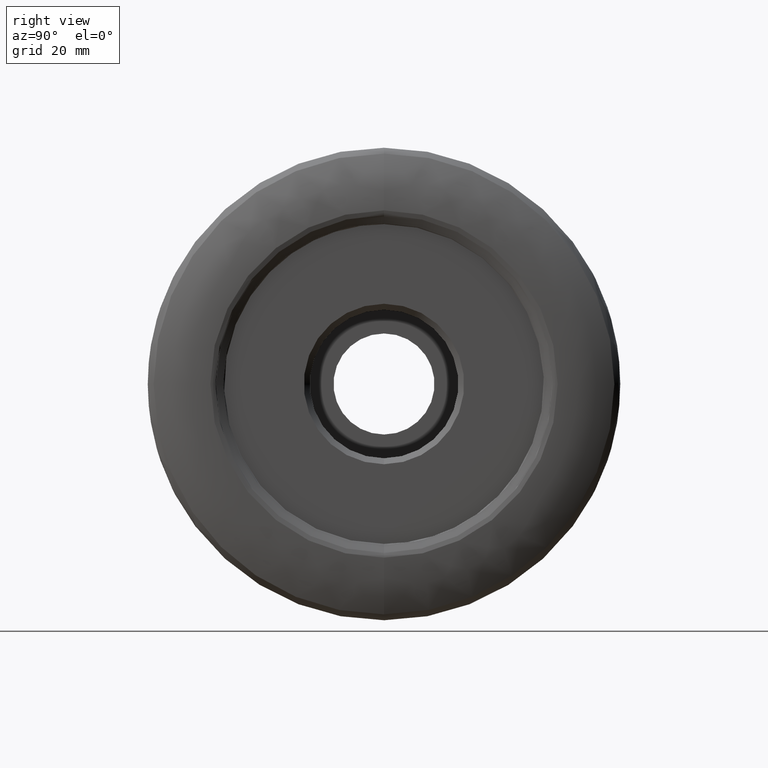
[diagram: clean part render]
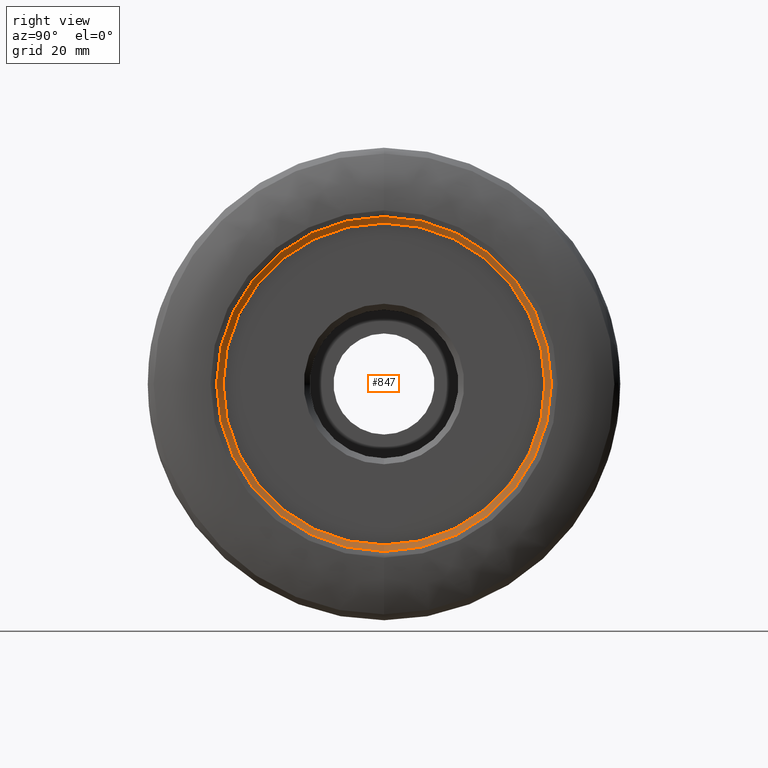
[diagram: same view with one face highlighted and labeled with its STEP entity id]
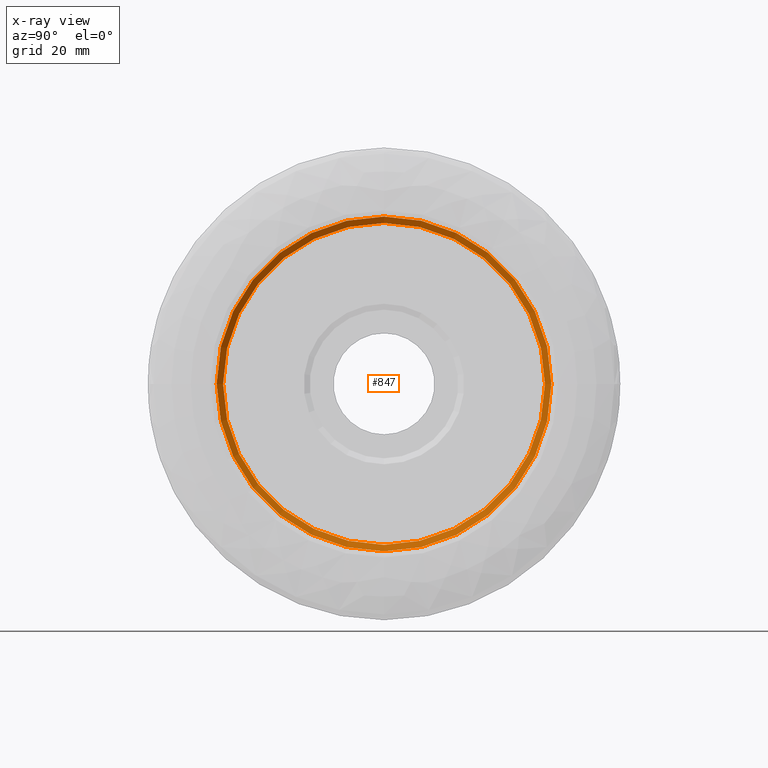
[diagram: x-ray of the same camera — body ghosted, the highlighted face saturated]
A machine part, right view. The second image highlights one B-rep face of the part: STEP entity #847.
The next image is the same camera in x-ray: the body ghosted, the highlighted face saturated — about 0% of this face is hidden behind the body in this view.
In plain terms, the highlighted conical surface has half-angle 61.835 deg.
Its self-contained STEP definition (entity closure, byte-faithful):
#4 = EDGE_CURVE ( 'NONE', #663, #484, #1372, .T. ) ;
#7 = AXIS2_PLACEMENT_3D ( 'NONE', #2329, #2338, #2348 ) ;
#173 = ORIENTED_EDGE ( 'NONE', *, *, #1138, .T. ) ;
#463 = EDGE_LOOP ( 'NONE', ( #173, #2326 ) ) ;
#484 = VERTEX_POINT ( 'NONE', #1612 ) ;
#505 = CIRCLE ( 'NONE', #576, 27.07297772700000800 ) ;
#576 = AXIS2_PLACEMENT_3D ( 'NONE', #1472, #1464, #1456 ) ;
#611 = EDGE_LOOP ( 'NONE', ( #756, #2225 ) ) ;
#663 = VERTEX_POINT ( 'NONE', #1195 ) ;
#701 = CARTESIAN_POINT ( 'NONE',  ( 0.1070139819999704800, 0.0000000000000000000, 0.0000000000000000000 ) ) ;
#712 = DIRECTION ( 'NONE',  ( -1.000000000000000000, -0.0000000000000000000, -0.0000000000000000000 ) ) ;
#715 = AXIS2_PLACEMENT_3D ( 'NONE', #701, #712, #746 ) ;
#746 = DIRECTION ( 'NONE',  ( 1.090790860571741500E-015, 0.0000000000000000000, -1.000000000000000000 ) ) ;
#756 = ORIENTED_EDGE ( 'NONE', *, *, #2580, .F. ) ;
#770 = DIRECTION ( 'NONE',  ( 0.0000000000000000000, 0.0000000000000000000, -1.000000000000000000 ) ) ;
#847 = ADVANCED_FACE ( 'NONE', ( #1924, #2791 ), #2800, .F. ) ;
#950 = DIRECTION ( 'NONE',  ( 1.000000000000000000, 0.0000000000000000000, 0.0000000000000000000 ) ) ;
#1138 = EDGE_CURVE ( 'NONE', #484, #663, #505, .T. ) ;
#1195 = CARTESIAN_POINT ( 'NONE',  ( 0.1070139820929238300, 0.0000000000000000000, 27.07297772735311600 ) ) ;
#1372 = CIRCLE ( 'NONE', #715, 27.07297772700000800 ) ;
#1381 = CARTESIAN_POINT ( 'NONE',  ( 0.1070139820000000100, 0.0000000000000000000, 0.0000000000000000000 ) ) ;
#1456 = DIRECTION ( 'NONE',  ( 1.090790860571741500E-015, 0.0000000000000000000, -1.000000000000000000 ) ) ;
#1464 = DIRECTION ( 'NONE',  ( -1.000000000000000000, -0.0000000000000000000, -0.0000000000000000000 ) ) ;
#1472 = CARTESIAN_POINT ( 'NONE',  ( 0.1070139819999704800, 0.0000000000000000000, 0.0000000000000000000 ) ) ;
#1481 = CIRCLE ( 'NONE', #1631, 28.16183304715605800 ) ;
#1515 = CIRCLE ( 'NONE', #7, 28.16183304715605800 ) ;
#1612 = CARTESIAN_POINT ( 'NONE',  ( 0.1070139821451343000, -6.077452256193997900E-010, -27.07297772740574300 ) ) ;
#1631 = AXIS2_PLACEMENT_3D ( 'NONE', #2299, #2287, #2281 ) ;
#1693 = CARTESIAN_POINT ( 'NONE',  ( 0.6900007020879683800, -7.220110639020060800E-009, 28.16183304705850800 ) ) ;
#1820 = VERTEX_POINT ( 'NONE', #1693 ) ;
#1905 = AXIS2_PLACEMENT_3D ( 'NONE', #1381, #950, #770 ) ;
#1924 = FACE_BOUND ( 'NONE', #463, .T. ) ;
#1945 = VERTEX_POINT ( 'NONE', #2486 ) ;
#2225 = ORIENTED_EDGE ( 'NONE', *, *, #2376, .F. ) ;
#2281 = DIRECTION ( 'NONE',  ( -3.849899154895364300E-018, -1.000000000000000000, 0.0000000000000000000 ) ) ;
#2287 = DIRECTION ( 'NONE',  ( -1.000000000000000000, 1.924949577462172500E-018, -0.0000000000000000000 ) ) ;
#2299 = CARTESIAN_POINT ( 'NONE',  ( 0.6900007022346119600, 0.0000000000000000000, 0.0000000000000000000 ) ) ;
#2326 = ORIENTED_EDGE ( 'NONE', *, *, #4, .T. ) ;
#2329 = CARTESIAN_POINT ( 'NONE',  ( 0.6900007022346119600, 0.0000000000000000000, 0.0000000000000000000 ) ) ;
#2338 = DIRECTION ( 'NONE',  ( -1.000000000000000000, -1.924949577462172500E-018, -0.0000000000000000000 ) ) ;
#2348 = DIRECTION ( 'NONE',  ( 3.849899154895364300E-018, -1.000000000000000000, 0.0000000000000000000 ) ) ;
#2376 = EDGE_CURVE ( 'NONE', #1945, #1820, #1515, .T. ) ;
#2486 = CARTESIAN_POINT ( 'NONE',  ( 0.6900007020586396100, -2.528753172494330300E-009, -28.16183304703899600 ) ) ;
#2580 = EDGE_CURVE ( 'NONE', #1820, #1945, #1481, .T. ) ;
#2791 = FACE_OUTER_BOUND ( 'NONE', #611, .T. ) ;
#2800 = CONICAL_SURFACE ( 'NONE', #1905, 27.07297772700000800, 1.079221690569214500 ) ;